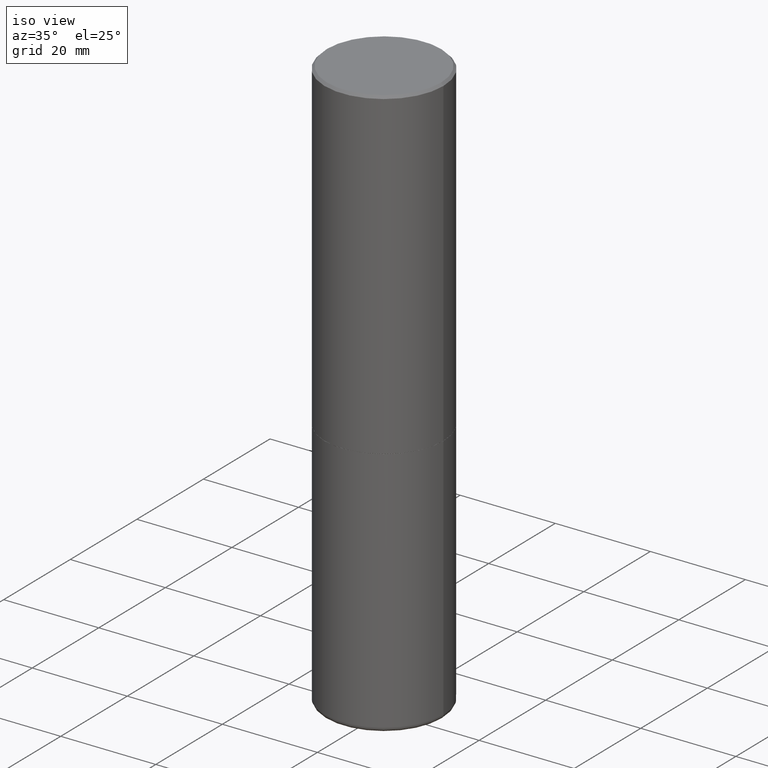
[diagram: clean part render]
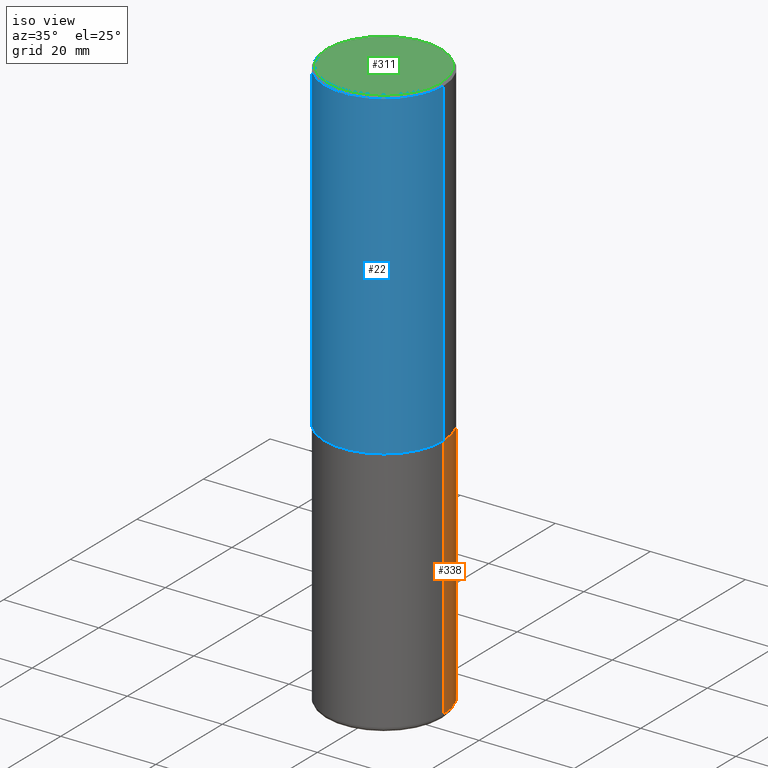
[diagram: same view with three faces highlighted in distinct colors, each labeled with its STEP entity id]
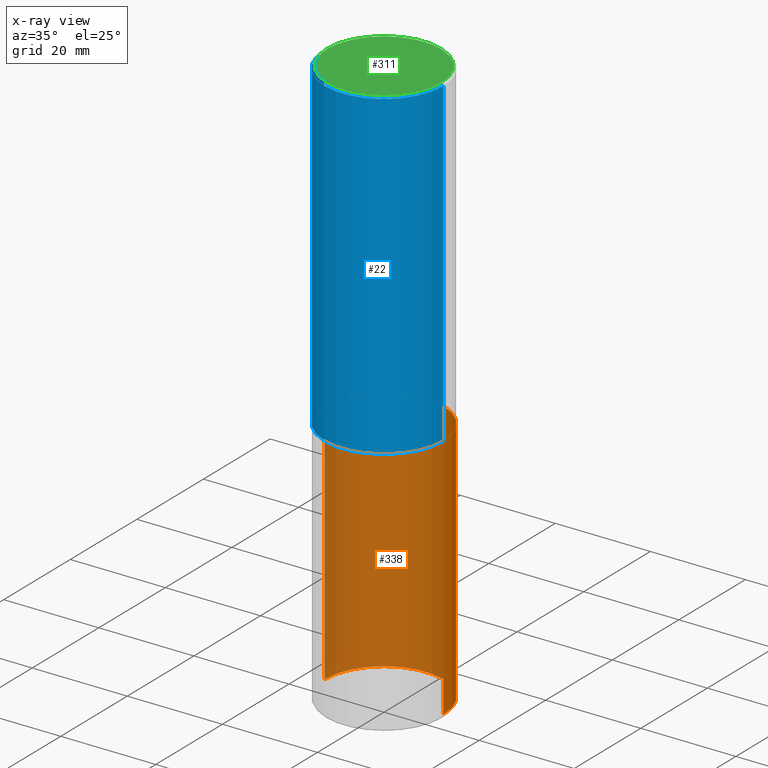
[diagram: x-ray of the same camera — body ghosted, the three highlighted faces saturated]
A machine part, iso view with three faces highlighted in distinct colors.
The next image is the same camera in x-ray (body ghosted, the three faces saturated) — at least one of them is partly hidden behind the body in this view.
Their STEP definitions:

[orange] entity #338 — the highlighted cylindrical surface (partial cylindrical patch) has radius 12.5006 mm, axis along (-0, 0, 1).
#2 = DIRECTION ( 'NONE',  ( -2.445468806185136597E-29, 3.491481338843145583E-15, 1.000000000000000000 ) ) ;
#11 = AXIS2_PLACEMENT_3D ( 'NONE', #130, #239, #189 ) ;
#23 = CARTESIAN_POINT ( 'NONE',  ( -0.4921499999999999764, -1.299821836318722241E-14, -4.724399999999999267 ) ) ;
#26 = EDGE_CURVE ( 'NONE', #81, #330, #170, .T. ) ;
#31 = VERTEX_POINT ( 'NONE', #135 ) ;
#46 = EDGE_LOOP ( 'NONE', ( #115, #309, #186, #373 ) ) ;
#49 = VECTOR ( 'NONE', #297, 39.37007874015748143 ) ;
#81 = VERTEX_POINT ( 'NONE', #294 ) ;
#86 = CARTESIAN_POINT ( 'NONE',  ( 0.4921499999999999764, -3.436665081823295777E-15, 2.399810400207969603E-29 ) ) ;
#92 = CIRCLE ( 'NONE', #279, 0.4921499999999999764 ) ;
#110 = EDGE_CURVE ( 'NONE', #31, #408, #92, .T. ) ;
#114 = LINE ( 'NONE', #86, #120 ) ;
#115 = ORIENTED_EDGE ( 'NONE', *, *, #110, .T. ) ;
#118 = CARTESIAN_POINT ( 'NONE',  ( -0.4921499999999999764, -9.424338064747378311E-15, -2.677199999999999580 ) ) ;
#120 = VECTOR ( 'NONE', #345, 39.37007874015748143 ) ;
#130 = CARTESIAN_POINT ( 'NONE',  ( 0.000000000000000000, 0.000000000000000000, 0.000000000000000000 ) ) ;
#131 = EDGE_CURVE ( 'NONE', #31, #81, #114, .T. ) ;
#135 = CARTESIAN_POINT ( 'NONE',  ( 0.4921499999999999764, -1.993181951905385030E-14, -4.724399999999999267 ) ) ;
#138 = LINE ( 'NONE', #169, #49 ) ;
#169 = CARTESIAN_POINT ( 'NONE',  ( -0.4921499999999999764, 3.496936074043332897E-15, -2.420853904668951509E-29 ) ) ;
#170 = CIRCLE ( 'NONE', #245, 0.4921499999999999764 ) ;
#186 = ORIENTED_EDGE ( 'NONE', *, *, #26, .F. ) ;
#189 = DIRECTION ( 'NONE',  ( 1.000000000000000000, -6.982962677686265922E-15, 4.876176775795935793E-29 ) ) ;
#225 = FACE_OUTER_BOUND ( 'NONE', #46, .T. ) ;
#226 = CYLINDRICAL_SURFACE ( 'NONE', #11, 0.4921499999999999764 ) ;
#237 = EDGE_CURVE ( 'NONE', #408, #330, #138, .T. ) ;
#239 = DIRECTION ( 'NONE',  ( -2.445468806185136597E-29, 3.491481338843145583E-15, 1.000000000000000000 ) ) ;
#245 = AXIS2_PLACEMENT_3D ( 'NONE', #283, #2, #268 ) ;
#268 = DIRECTION ( 'NONE',  ( 1.000000000000000000, -6.982962677686265922E-15, 0.000000000000000000 ) ) ;
#279 = AXIS2_PLACEMENT_3D ( 'NONE', #376, #303, #336 ) ;
#283 = CARTESIAN_POINT ( 'NONE',  ( 6.547009087918846705E-29, -9.347393840350866318E-15, -2.677199999999999580 ) ) ;
#294 = CARTESIAN_POINT ( 'NONE',  ( 0.4921499999999999764, -1.278405892217416209E-14, -2.677199999999999580 ) ) ;
#297 = DIRECTION ( 'NONE',  ( -2.445468806185136877E-29, 3.491481338843145188E-15, 1.000000000000000000 ) ) ;
#303 = DIRECTION ( 'NONE',  ( -2.445468806185136597E-29, 3.491481338843145583E-15, 1.000000000000000000 ) ) ;
#309 = ORIENTED_EDGE ( 'NONE', *, *, #237, .T. ) ;
#330 = VERTEX_POINT ( 'NONE', #118 ) ;
#336 = DIRECTION ( 'NONE',  ( 1.000000000000000000, -6.982962677686261977E-15, 0.000000000000000000 ) ) ;
#338 = ADVANCED_FACE ( 'NONE', ( #225 ), #226, .T. ) ;
#345 = DIRECTION ( 'NONE',  ( -2.445468806185136877E-29, 3.491481338843145188E-15, 1.000000000000000000 ) ) ;
#373 = ORIENTED_EDGE ( 'NONE', *, *, #131, .F. ) ;
#376 = CARTESIAN_POINT ( 'NONE',  ( 1.155337282794105951E-28, -1.649515443723055610E-14, -4.724399999999999267 ) ) ;
#408 = VERTEX_POINT ( 'NONE', #23 ) ;

[blue] entity #22 — the highlighted cylindrical surface (partial cylindrical patch) has radius 12.5006 mm, axis along (-0, 0, 1).
#7 = EDGE_CURVE ( 'NONE', #274, #379, #411, .T. ) ;
#10 = FACE_OUTER_BOUND ( 'NONE', #61, .T. ) ;
#22 = ADVANCED_FACE ( 'NONE', ( #10 ), #139, .T. ) ;
#30 = EDGE_CURVE ( 'NONE', #274, #63, #105, .T. ) ;
#32 = CARTESIAN_POINT ( 'NONE',  ( 0.4921500000000000874, -3.436665081823296565E-15, 2.399810400207970163E-29 ) ) ;
#34 = ORIENTED_EDGE ( 'NONE', *, *, #7, .T. ) ;
#38 = DIRECTION ( 'NONE',  ( -2.445468806185136597E-29, 3.491481338843145583E-15, 1.000000000000000000 ) ) ;
#39 = DIRECTION ( 'NONE',  ( -2.445468806185136877E-29, 3.491481338843145188E-15, 1.000000000000000000 ) ) ;
#40 = DIRECTION ( 'NONE',  ( -2.445468806185136877E-29, 3.491481338843145188E-15, 1.000000000000000000 ) ) ;
#42 = CARTESIAN_POINT ( 'NONE',  ( -0.4921499999999999764, 3.366835455046432478E-15, -0.02000000000000010797 ) ) ;
#45 = VECTOR ( 'NONE', #39, 39.37007874015748143 ) ;
#61 = EDGE_LOOP ( 'NONE', ( #372, #34, #337, #236 ) ) ;
#63 = VERTEX_POINT ( 'NONE', #42 ) ;
#65 = EDGE_CURVE ( 'NONE', #63, #187, #340, .T. ) ;
#68 = CARTESIAN_POINT ( 'NONE',  ( 6.544563619112662223E-29, -9.343902359012024888E-15, -2.676199999999999690 ) ) ;
#69 = DIRECTION ( 'NONE',  ( 1.000000000000000000, -6.982962677686265922E-15, 4.876176775795935793E-29 ) ) ;
#90 = CARTESIAN_POINT ( 'NONE',  ( 4.890937612370299433E-31, -6.982962677686328587E-17, -0.02000000000000010797 ) ) ;
#102 = DIRECTION ( 'NONE',  ( 1.000000000000000000, -6.982962677686265922E-15, 0.000000000000000000 ) ) ;
#105 = LINE ( 'NONE', #362, #45 ) ;
#139 = CYLINDRICAL_SURFACE ( 'NONE', #364, 0.4921500000000000874 ) ;
#157 = DIRECTION ( 'NONE',  ( -2.445468806185136597E-29, 3.491481338843145583E-15, 1.000000000000000000 ) ) ;
#160 = CARTESIAN_POINT ( 'NONE',  ( 0.4921499999999999764, -3.446223716380122349E-15, -0.02000000000000010797 ) ) ;
#187 = VERTEX_POINT ( 'NONE', #160 ) ;
#209 = CARTESIAN_POINT ( 'NONE',  ( 0.4921500000000003094, -1.278056744083532224E-14, -2.676199999999999690 ) ) ;
#217 = AXIS2_PLACEMENT_3D ( 'NONE', #90, #348, #102 ) ;
#221 = CARTESIAN_POINT ( 'NONE',  ( 0.000000000000000000, 0.000000000000000000, 0.000000000000000000 ) ) ;
#223 = LINE ( 'NONE', #32, #252 ) ;
#236 = ORIENTED_EDGE ( 'NONE', *, *, #65, .F. ) ;
#252 = VECTOR ( 'NONE', #40, 39.37007874015748143 ) ;
#274 = VERTEX_POINT ( 'NONE', #401 ) ;
#291 = EDGE_CURVE ( 'NONE', #379, #187, #223, .T. ) ;
#298 = DIRECTION ( 'NONE',  ( 1.000000000000000000, -6.982962677686265922E-15, 0.000000000000000000 ) ) ;
#337 = ORIENTED_EDGE ( 'NONE', *, *, #291, .T. ) ;
#340 = CIRCLE ( 'NONE', #217, 0.4921499999999999764 ) ;
#348 = DIRECTION ( 'NONE',  ( -2.445468806185136597E-29, 3.491481338843145583E-15, 1.000000000000000000 ) ) ;
#350 = AXIS2_PLACEMENT_3D ( 'NONE', #68, #38, #298 ) ;
#362 = CARTESIAN_POINT ( 'NONE',  ( -0.4921500000000000874, 3.496936074043333686E-15, -2.420853904668952350E-29 ) ) ;
#364 = AXIS2_PLACEMENT_3D ( 'NONE', #221, #157, #69 ) ;
#372 = ORIENTED_EDGE ( 'NONE', *, *, #30, .F. ) ;
#379 = VERTEX_POINT ( 'NONE', #209 ) ;
#401 = CARTESIAN_POINT ( 'NONE',  ( -0.4921500000000003094, -1.209929918851106266E-15, -2.676199999999999690 ) ) ;
#411 = CIRCLE ( 'NONE', #350, 0.4921500000000003094 ) ;

[green] entity #311 — the highlighted planar face has unit normal (0, -0, -1).
#3 = AXIS2_PLACEMENT_3D ( 'NONE', #198, #6, #106 ) ;
#6 = DIRECTION ( 'NONE',  ( 2.438088387897960049E-29, -3.491481338843145188E-15, -1.000000000000000000 ) ) ;
#29 = FACE_OUTER_BOUND ( 'NONE', #400, .T. ) ;
#33 = AXIS2_PLACEMENT_3D ( 'NONE', #409, #212, #142 ) ;
#106 = DIRECTION ( 'NONE',  ( -1.000000000000000000, 6.982962677686265922E-15, -4.876176775795935793E-29 ) ) ;
#128 = EDGE_CURVE ( 'NONE', #381, #216, #355, .T. ) ;
#142 = DIRECTION ( 'NONE',  ( 1.000000000000000000, -6.982962677686265922E-15, 4.882029041999365698E-29 ) ) ;
#162 = CIRCLE ( 'NONE', #183, 0.4721499999999996255 ) ;
#165 = CARTESIAN_POINT ( 'NONE',  ( -6.785034193178930130E-45, 9.687230607472910058E-31, 2.774533118565267978E-16 ) ) ;
#183 = AXIS2_PLACEMENT_3D ( 'NONE', #165, #328, #288 ) ;
#198 = CARTESIAN_POINT ( 'NONE',  ( 3.297005828269567997E-15, 0.4721499999999996255, -1.509776258206526442E-15 ) ) ;
#212 = DIRECTION ( 'NONE',  ( -2.445468806185136597E-29, 3.491481338843145583E-15, 1.000000000000000000 ) ) ;
#216 = VERTEX_POINT ( 'NONE', #287 ) ;
#287 = CARTESIAN_POINT ( 'NONE',  ( -0.4721499999999996255, 3.331920641658000829E-15, 2.774533118565036250E-16 ) ) ;
#288 = DIRECTION ( 'NONE',  ( 1.000000000000000000, -6.982962677686265922E-15, 4.882029041999365698E-29 ) ) ;
#296 = EDGE_CURVE ( 'NONE', #216, #381, #162, .T. ) ;
#311 = ADVANCED_FACE ( 'NONE', ( #29 ), #369, .F. ) ;
#324 = CARTESIAN_POINT ( 'NONE',  ( 0.4721499999999996255, -3.342703923013973791E-15, 2.774533118565500199E-16 ) ) ;
#328 = DIRECTION ( 'NONE',  ( -2.445468806185136597E-29, 3.491481338843145583E-15, 1.000000000000000000 ) ) ;
#355 = CIRCLE ( 'NONE', #33, 0.4721499999999996255 ) ;
#361 = ORIENTED_EDGE ( 'NONE', *, *, #296, .T. ) ;
#369 = PLANE ( 'NONE',  #3 ) ;
#381 = VERTEX_POINT ( 'NONE', #324 ) ;
#400 = EDGE_LOOP ( 'NONE', ( #361, #415 ) ) ;
#409 = CARTESIAN_POINT ( 'NONE',  ( -6.785034193178930130E-45, 9.687230607472910058E-31, 2.774533118565267978E-16 ) ) ;
#415 = ORIENTED_EDGE ( 'NONE', *, *, #128, .T. ) ;